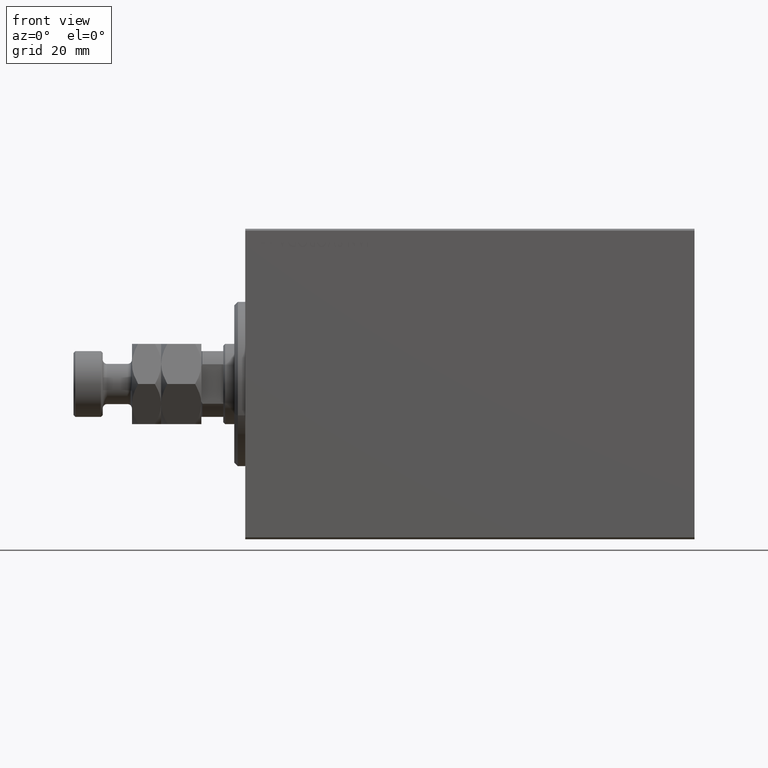
[diagram: clean part render]
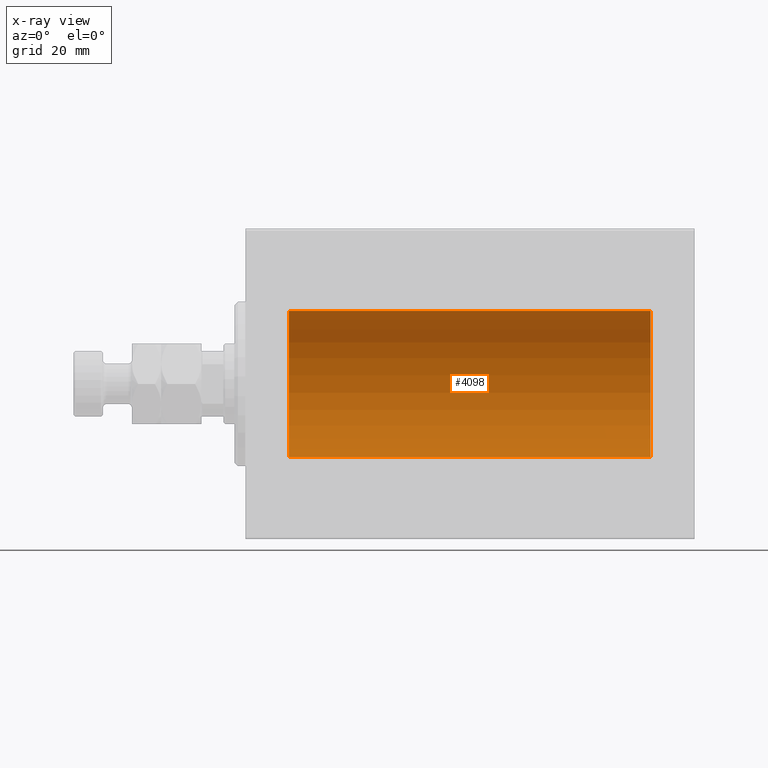
[diagram: x-ray — body ghosted, one internal face saturated and labeled with its STEP entity id]
A machine part, front view, then the same camera in x-ray: the body is ghosted and one INTERNAL B-rep face — a face not visible from any outside direction — is saturated and labeled: STEP entity #4098.
In plain terms, the highlighted cylindrical surface (partial cylindrical patch) has radius 20 mm, axis along (-1, -0, -0).
Its self-contained STEP definition (entity closure, byte-faithful):
#499 = CYLINDRICAL_SURFACE ( 'NONE', #43656, 20.00000000000000000 ) ;
#1489 = DIRECTION ( 'NONE',  ( -1.000000000000000000, -0.000000000000000000, -0.000000000000000000 ) ) ;
#2179 = CIRCLE ( 'NONE', #27094, 20.00000000000000000 ) ;
#2727 = VERTEX_POINT ( 'NONE', #28830 ) ;
#4098 = ADVANCED_FACE ( 'NONE', ( #24845 ), #499, .F. ) ;
#7138 = EDGE_CURVE ( 'NONE', #2727, #17449, #12949, .T. ) ;
#8037 = DIRECTION ( 'NONE',  ( -1.000000000000000000, 0.000000000000000000, 0.000000000000000000 ) ) ;
#8102 = CARTESIAN_POINT ( 'NONE',  ( 11.99999999999999645, 2.449293598294706513E-15, -20.00000000000000000 ) ) ;
#9890 = CARTESIAN_POINT ( 'NONE',  ( 111.0000000000000000, 2.449293598294706513E-15, -20.00000000000000000 ) ) ;
#12671 = VERTEX_POINT ( 'NONE', #36331 ) ;
#12949 = CIRCLE ( 'NONE', #45226, 20.00000000000000000 ) ;
#16060 = DIRECTION ( 'NONE',  ( 0.000000000000000000, 0.000000000000000000, 1.000000000000000000 ) ) ;
#17351 = EDGE_CURVE ( 'NONE', #12671, #2727, #29278, .T. ) ;
#17449 = VERTEX_POINT ( 'NONE', #8102 ) ;
#17692 = DIRECTION ( 'NONE',  ( -1.000000000000000000, -0.000000000000000000, -0.000000000000000000 ) ) ;
#19095 = ORIENTED_EDGE ( 'NONE', *, *, #7138, .T. ) ;
#19291 = CARTESIAN_POINT ( 'NONE',  ( 11.99999999999999645, 0.000000000000000000, 0.000000000000000000 ) ) ;
#19475 = EDGE_CURVE ( 'NONE', #45415, #17449, #31239, .T. ) ;
#20266 = EDGE_CURVE ( 'NONE', #12671, #45415, #2179, .T. ) ;
#24845 = FACE_OUTER_BOUND ( 'NONE', #26291, .T. ) ;
#25835 = CARTESIAN_POINT ( 'NONE',  ( 111.0000000000000000, 0.000000000000000000, 20.00000000000000000 ) ) ;
#26291 = EDGE_LOOP ( 'NONE', ( #27946, #44420, #35303, #19095 ) ) ;
#27078 = DIRECTION ( 'NONE',  ( -1.000000000000000000, 0.000000000000000000, 0.000000000000000000 ) ) ;
#27094 = AXIS2_PLACEMENT_3D ( 'NONE', #39487, #8037, #32145 ) ;
#27946 = ORIENTED_EDGE ( 'NONE', *, *, #19475, .F. ) ;
#28830 = CARTESIAN_POINT ( 'NONE',  ( 11.99999999999999645, 0.000000000000000000, 20.00000000000000000 ) ) ;
#29278 = LINE ( 'NONE', #25835, #43892 ) ;
#31239 = LINE ( 'NONE', #9890, #36644 ) ;
#32145 = DIRECTION ( 'NONE',  ( 0.000000000000000000, 0.000000000000000000, 1.000000000000000000 ) ) ;
#32189 = DIRECTION ( 'NONE',  ( 0.000000000000000000, 0.000000000000000000, 1.000000000000000000 ) ) ;
#35195 = DIRECTION ( 'NONE',  ( -1.000000000000000000, -0.000000000000000000, -0.000000000000000000 ) ) ;
#35303 = ORIENTED_EDGE ( 'NONE', *, *, #17351, .T. ) ;
#36331 = CARTESIAN_POINT ( 'NONE',  ( 111.0000000000000000, 0.000000000000000000, 20.00000000000000000 ) ) ;
#36644 = VECTOR ( 'NONE', #17692, 1000.000000000000000 ) ;
#38021 = CARTESIAN_POINT ( 'NONE',  ( 111.0000000000000000, 2.449293598294706513E-15, -20.00000000000000000 ) ) ;
#39487 = CARTESIAN_POINT ( 'NONE',  ( 111.0000000000000000, 0.000000000000000000, 0.000000000000000000 ) ) ;
#42280 = CARTESIAN_POINT ( 'NONE',  ( 111.0000000000000000, 0.000000000000000000, 0.000000000000000000 ) ) ;
#43656 = AXIS2_PLACEMENT_3D ( 'NONE', #42280, #35195, #32189 ) ;
#43892 = VECTOR ( 'NONE', #1489, 1000.000000000000000 ) ;
#44420 = ORIENTED_EDGE ( 'NONE', *, *, #20266, .F. ) ;
#45226 = AXIS2_PLACEMENT_3D ( 'NONE', #19291, #27078, #16060 ) ;
#45415 = VERTEX_POINT ( 'NONE', #38021 ) ;